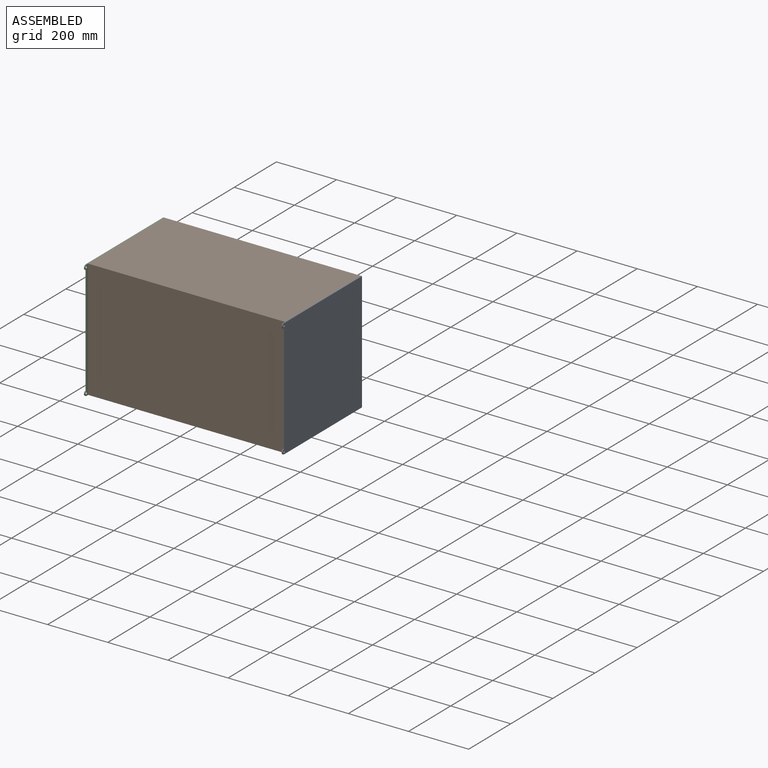
[diagram: assembled view]
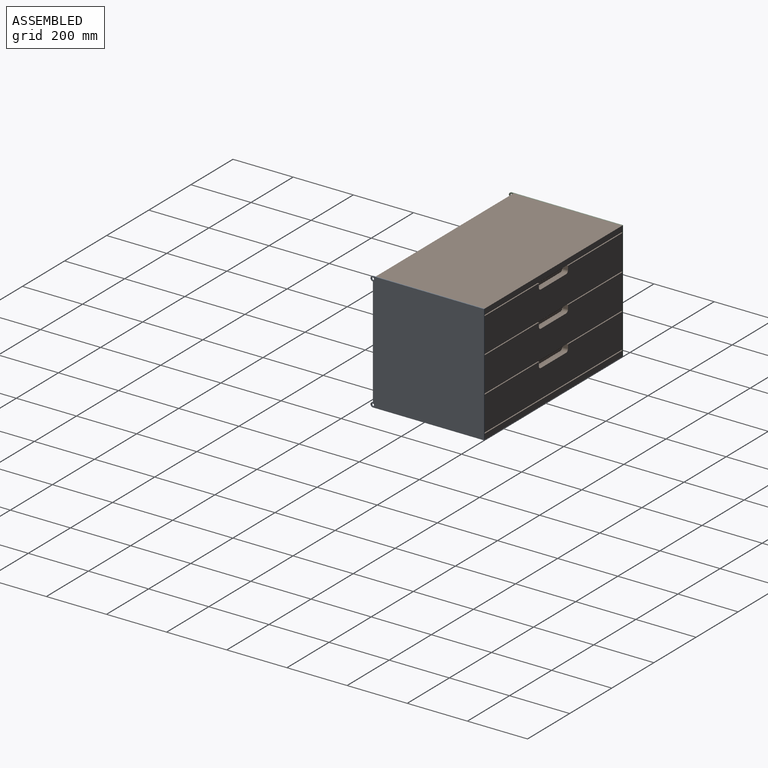
[diagram: assembled view, second angle]
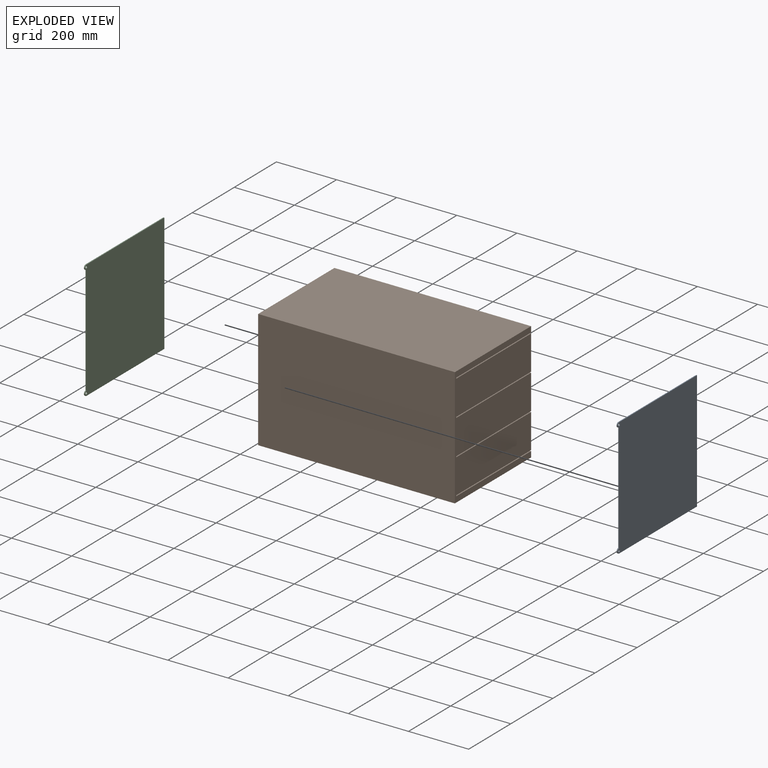
[diagram: exploded view]
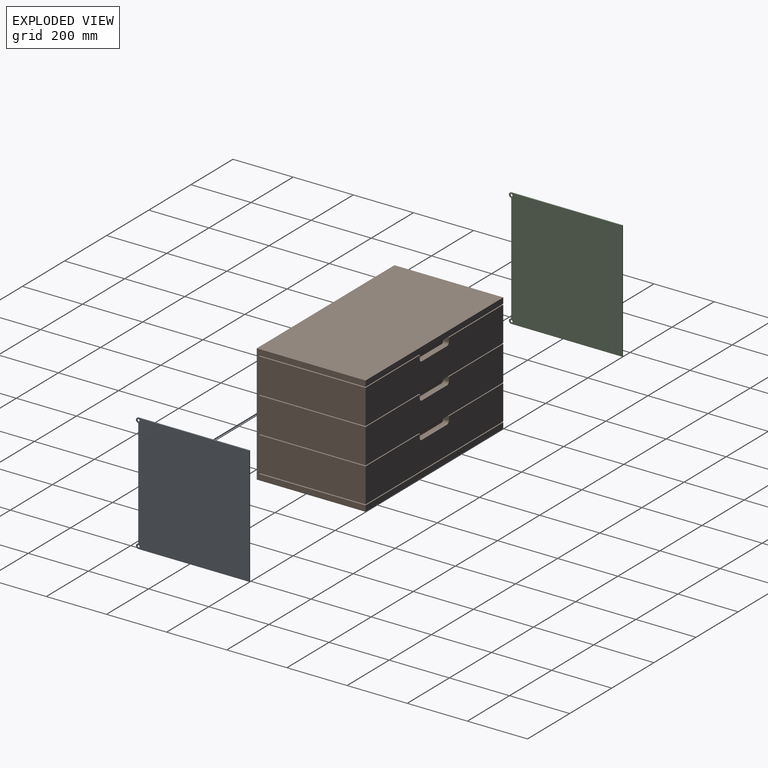
[diagram: exploded view, second angle]
ASSEMBLY  parts=3 mates=2
PART A: 10 faces, bbox 3.2x377.4x394.5 mm
  f0: cylinder r=7.87mm len=15.75mm, axis (-1,0,0), area 78.5mm2, adj f1,f7,f8,f9
  f1: plane 362.99x3.18mm, normal (0,-1,0), area 1152.5mm2, adj f0,f2,f8,f9
  f2: cylinder r=7.87mm len=15.75mm, axis (-1,0,0), area 78.5mm2, adj f1,f3,f8,f9
  f3: plane 369.49x3.18mm, normal (0,0,-1), area 1173.1mm2, adj f2,f4,f8,f9
  f4: plane 394.49x3.18mm, normal (0,1,0), area 1252.5mm2, adj f3,f7,f8,f9
  f5: cylinder r=4mm len=8mm, axis (-1,0,0), area 79.8mm2, adj f8,f9
  f6: cylinder r=4mm len=8mm, axis (-1,0,0), area 79.8mm2, adj f8,f9
  f7: plane 369.49x3.18mm, normal (0,0,1), area 1173.1mm2, adj f0,f4,f8,f9
  f8: plane 394.49x377.37mm, normal (1,0,0), area 145854.9mm2, adj f0,f1,f2,f3,f4,f5,f6,f7
  f9: plane 394.49x377.37mm, normal (-1,0,0), area 145854.9mm2, adj f0,f1,f2,f3,f4,f5,f6,f7
PART B: 70 faces, bbox 654.1x362x394.5 mm
  f0: plane 13.26x12.7mm, normal (1,0,0), area 168.4mm2, adj f9,f52,f54,f67
  f1: plane 19.05x13.26mm, normal (1,0,0), area 252.6mm2, adj f10,f31,f52,f66
  f2: plane 355.6x257.33mm, normal (0,0,1), area 14339.6mm2, adj f3,f4,f31,f40,f54,f66,f67,f68
  f3: plane 13.26x12.7mm, normal (-1,0,0), area 168.4mm2, adj f2,f5,f54,f67
  f4: plane 19.05x13.26mm, normal (-1,0,0), area 252.6mm2, adj f2,f6,f31,f66
  f5: cylinder r=9.35mm len=12.7mm, axis (0,1,0), area 179.1mm2, adj f3,f7,f54,f67
  f6: cylinder r=9.35mm len=19.05mm, axis (0,1,0), area 268.6mm2, adj f4,f8,f31,f66
  f7: plane 120x12.7mm, normal (0,0,1), area 1524mm2, adj f5,f9,f54,f67
  f8: plane 120x19.05mm, normal (0,0,1), area 2286mm2, adj f6,f10,f31,f66
  f9: cylinder r=8.77mm len=12.7mm, axis (0,1,0), area 177.2mm2, adj f0,f7,f54,f67
  f10: cylinder r=8.77mm len=19.05mm, axis (0,1,0), area 265.8mm2, adj f1,f8,f31,f66
  f11: cylinder r=8.77mm len=12.7mm, axis (0,1,0), area 177.2mm2, adj f13,f19,f51,f64
  f12: cylinder r=8.77mm len=19.05mm, axis (0,1,0), area 265.8mm2, adj f14,f20,f32,f61
  f13: plane 120x12.7mm, normal (0,0,1), area 1524mm2, adj f11,f15,f51,f64
  f14: plane 120x19.05mm, normal (0,0,1), area 2286mm2, adj f12,f16,f32,f61
  f15: cylinder r=9.35mm len=12.7mm, axis (0,1,0), area 179.1mm2, adj f13,f50,f51,f64
  f16: cylinder r=9.35mm len=19.05mm, axis (0,1,0), area 268.6mm2, adj f14,f17,f32,f61
  f17: plane 19.05x13.26mm, normal (-1,0,0), area 252.6mm2, adj f16,f18,f32,f61
  f18: plane 355.6x257.33mm, normal (0,0,1), area 14339.6mm2, adj f17,f32,f40,f50,f51,f61,f63,f64
  f19: plane 13.26x12.7mm, normal (1,0,0), area 168.4mm2, adj f11,f48,f51,f64
  f20: plane 19.05x13.26mm, normal (1,0,0), area 252.6mm2, adj f12,f32,f48,f61
  f21: plane 13.26x12.7mm, normal (1,0,0), area 168.4mm2, adj f29,f44,f47,f59
  f22: plane 19.05x13.26mm, normal (1,0,0), area 252.6mm2, adj f30,f33,f44,f57
  f23: plane 355.6x257.33mm, normal (0,0,1), area 14339.6mm2, adj f24,f33,f40,f46,f47,f57,f58,f59
  f24: plane 19.05x13.26mm, normal (-1,0,0), area 252.6mm2, adj f23,f26,f33,f57
  f25: cylinder r=9.35mm len=12.7mm, axis (0,1,0), area 179.1mm2, adj f27,f46,f47,f59
  f26: cylinder r=9.35mm len=19.05mm, axis (0,1,0), area 268.6mm2, adj f24,f28,f33,f57
  f27: plane 120x12.7mm, normal (0,0,1), area 1524mm2, adj f25,f29,f47,f59
  f28: plane 120x19.05mm, normal (0,0,1), area 2286mm2, adj f26,f30,f33,f57
  f29: cylinder r=8.77mm len=12.7mm, axis (0,1,0), area 177.2mm2, adj f21,f27,f47,f59
  f30: cylinder r=8.77mm len=19.05mm, axis (0,1,0), area 265.8mm2, adj f22,f28,f33,f57
  f31: plane 654.05x114.67mm, normal (0,1,0), area 71990.1mm2, adj f1,f2,f4,f6,f8,f10,f35,f40
  f32: plane 654.05x115.14mm, normal (0,1,0), area 72299.2mm2, adj f12,f14,f16,f17,f18,f20,f35,f40
  f33: plane 654.05x113.98mm, normal (0,1,0), area 71539mm2, adj f22,f23,f24,f26,f28,f30,f35,f40
  f34: plane 654.05x19mm, normal (0,1,0), area 12426.4mm2, adj f35,f39,f40,f41
  f35: plane 394.49x361.95mm, normal (-1,0,0), area 138268.6mm2, adj f31,f32,f33,f34,f36,f37,f38,f39
  f36: plane 654.05x394.49mm, normal (0,-1,0), area 258014.5mm2, adj f35,f37,f39,f40
  f37: plane 654.05x361.95mm, normal (0,0,1), area 236733.4mm2, adj f35,f36,f38,f40
  f38: plane 654.05x18.99mm, normal (0,1,0), area 12423.2mm2, adj f35,f37,f40,f53
  f39: plane 654.05x361.95mm, normal (0,0,-1), area 236733.4mm2, adj f34,f35,f36,f40
  f40: plane 394.49x361.95mm, normal (1,0,0), area 138268.6mm2, adj f2,f18,f23,f31,f32,f33,f34,f36
  f41: plane 654.05x355.6mm, normal (0,0,1), area 232580.2mm2, adj f34,f35,f40,f43
  f42: plane 654.05x355.6mm, normal (0,0,-1), area 232580.2mm2, adj f33,f35,f40,f43
  f43: plane 654.05x3.18mm, normal (0,1,0), area 2076.6mm2, adj f35,f40,f41,f42
  f44: plane 355.6x258.44mm, normal (0,0,1), area 14374.7mm2, adj f21,f22,f33,f35,f47,f56,f57,f59
  f45: plane 654.05x355.6mm, normal (0,0,-1), area 232580.2mm2, adj f32,f35,f40,f47
  f46: plane 13.26x12.7mm, normal (-1,0,0), area 168.4mm2, adj f23,f25,f47,f59
  f47: plane 654.05x25.2mm, normal (0,1,0), area 5086.6mm2, adj f21,f23,f25,f27,f29,f35,f40,f44
  f48: plane 355.6x258.44mm, normal (0,0,1), area 14374.7mm2, adj f19,f20,f32,f35,f51,f61,f62,f64
  f49: plane 654.05x355.6mm, normal (0,0,-1), area 232580.2mm2, adj f31,f35,f40,f51
  f50: plane 13.26x12.7mm, normal (-1,0,0), area 168.4mm2, adj f15,f18,f51,f64
  f51: plane 654.05x25.2mm, normal (0,1,0), area 5086.6mm2, adj f11,f13,f15,f18,f19,f35,f40,f48
  f52: plane 355.6x258.44mm, normal (0,0,1), area 14374.7mm2, adj f0,f1,f31,f35,f54,f65,f66,f67
  f53: plane 654.05x355.6mm, normal (0,0,-1), area 232580.2mm2, adj f35,f38,f40,f54
  f54: plane 654.05x25.2mm, normal (0,1,0), area 5086.6mm2, adj f0,f2,f3,f5,f7,f9,f35,f40
  f55: plane 615.95x323.85mm, normal (0,0,1), area 199475.4mm2, adj f56,f57,f58,f59
  f56: plane 323.85x94.93mm, normal (1,0,0), area 30743.3mm2, adj f44,f55,f57,f59
  f57: plane 615.95x94.93mm, normal (0,-1,0), area 55462.5mm2, adj f22,f23,f24,f26,f28,f30,f44,f55
  f58: plane 323.85x94.93mm, normal (-1,0,0), area 30743.3mm2, adj f23,f55,f57,f59
  f59: plane 615.95x94.93mm, normal (0,1,0), area 55462.5mm2, adj f21,f23,f25,f27,f29,f44,f46,f55
  f60: plane 615.95x323.85mm, normal (0,0,1), area 199475.4mm2, adj f61,f62,f63,f64
  f61: plane 615.95x96.09mm, normal (0,-1,0), area 56178.4mm2, adj f12,f14,f16,f17,f18,f20,f48,f60
  f62: plane 323.85x96.09mm, normal (1,0,0), area 31119.7mm2, adj f48,f60,f61,f64
  f63: plane 323.85x96.09mm, normal (-1,0,0), area 31119.7mm2, adj f18,f60,f61,f64
  f64: plane 615.95x96.09mm, normal (0,1,0), area 56178.4mm2, adj f11,f13,f15,f18,f19,f48,f50,f60
  f65: plane 323.85x95.62mm, normal (1,0,0), area 30966.6mm2, adj f52,f66,f67,f69
  f66: plane 615.95x95.62mm, normal (0,-1,0), area 55887.3mm2, adj f1,f2,f4,f6,f8,f10,f52,f65
  f67: plane 615.95x95.62mm, normal (0,1,0), area 55887.3mm2, adj f0,f2,f3,f5,f7,f9,f52,f65
  f68: plane 323.85x95.62mm, normal (-1,0,0), area 30966.6mm2, adj f2,f66,f67,f69
  f69: plane 615.95x323.85mm, normal (0,0,1), area 199475.4mm2, adj f65,f66,f67,f68
PART C: same geometry as A
PLACE A t=(-3488.77,5380.55,-3878.08)mm
PLACE B t=(-2213.27,5380.55,-1902.53)mm
PLACE C t=(-4145.99,5380.55,-3878.08)mm
MATE fastened A.f9 <-> B.f40  axis (-1,0,0) through (-3488.77,-2784.95,-947.07)mm
MATE fastened C.f8 <-> B.f35  axis (1,0,0) through (-4142.82,-2784.95,-947.07)mm
